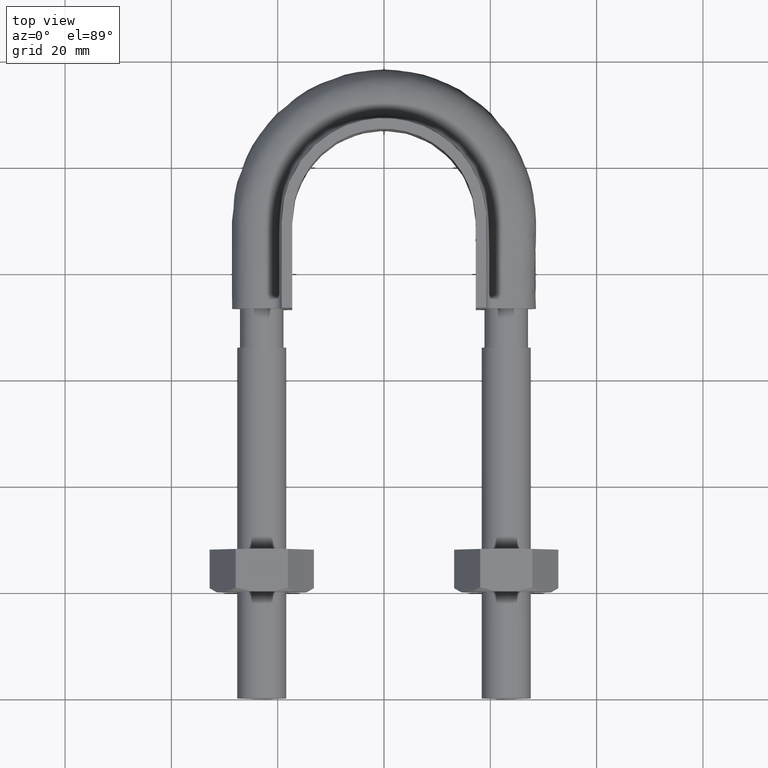
[diagram: clean part render]
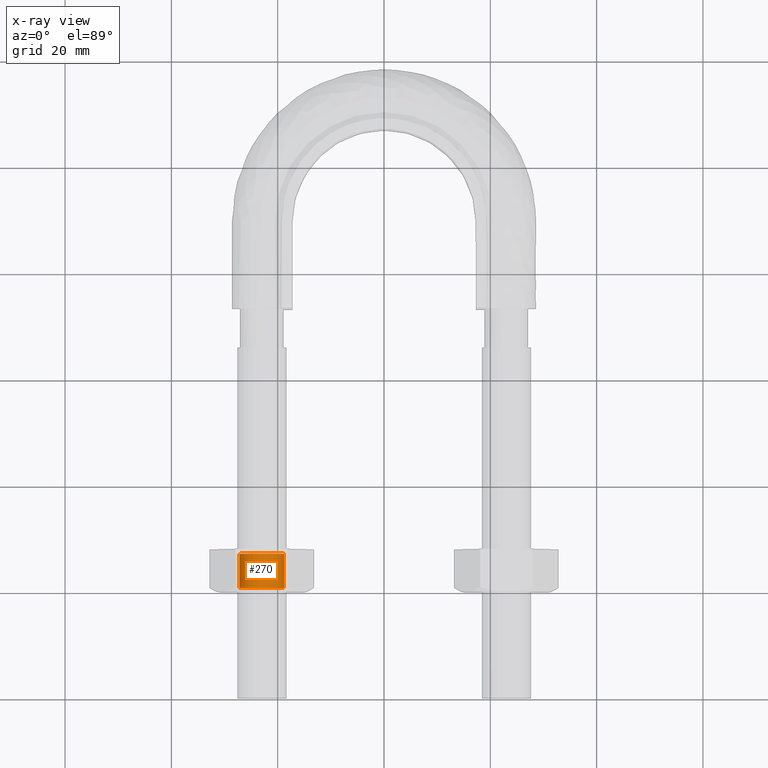
[diagram: x-ray — body ghosted, one internal face saturated and labeled with its STEP entity id]
A machine part, top view, then the same camera in x-ray: the body is ghosted and one INTERNAL B-rep face — a face not visible from any outside direction — is saturated and labeled: STEP entity #270.
In plain terms, the highlighted cylindrical surface (bore or boss wall) has radius 4.188 mm, axis along (-0, -1, -0).
Its self-contained STEP definition (entity closure, byte-faithful):
#270 = ADVANCED_FACE( '', ( #411, #412 ), #413, .F. );
#411 = FACE_OUTER_BOUND( '', #1408, .T. );
#412 = FACE_OUTER_BOUND( '', #1409, .T. );
#413 = CYLINDRICAL_SURFACE( '', #1410, 4.18800000000000 );
#1408 = EDGE_LOOP( '', ( #1820 ) );
#1409 = EDGE_LOOP( '', ( #1821 ) );
#1410 = AXIS2_PLACEMENT_3D( '', #1822, #1823, #1824 );
#1820 = ORIENTED_EDGE( '', *, *, #2102, .T. );
#1821 = ORIENTED_EDGE( '', *, *, #2101, .F. );
#1822 = CARTESIAN_POINT( '', ( -23.0000000000000, 28.0000000000000, 9.03086199571801E-015 ) );
#1823 = DIRECTION( '', ( -2.44921270764475E-016, -1.00000000000000, -3.06151588455594E-016 ) );
#1824 = DIRECTION( '', ( -0.866025403784439, 3.65183836637000E-016, -0.500000000000000 ) );
#2101 = EDGE_CURVE( '', #2315, #2315, #2316, .T. );
#2102 = EDGE_CURVE( '', #2317, #2317, #2318, .T. );
#2315 = VERTEX_POINT( '', #2841 );
#2316 = CIRCLE( '', #2842, 4.18800000000000 );
#2317 = VERTEX_POINT( '', #2843 );
#2318 = CIRCLE( '', #2844, 4.18800000000000 );
#2841 = CARTESIAN_POINT( '', ( -26.6269143910492, 20.8120000000000, -2.09399999999999 ) );
#2842 = AXIS2_PLACEMENT_3D( '', #3161, #3162, #3163 );
#2843 = CARTESIAN_POINT( '', ( -26.6269143910492, 27.1880000000000, -2.09399999999999 ) );
#2844 = AXIS2_PLACEMENT_3D( '', #3164, #3165, #3166 );
#3161 = CARTESIAN_POINT( '', ( -23.0000000000000, 20.8120000000000, 6.83024437789920E-015 ) );
#3162 = DIRECTION( '', ( 2.44921270764475E-016, 1.00000000000000, 3.06151588455594E-016 ) );
#3163 = DIRECTION( '', ( -0.866025403784439, 3.65183836637000E-016, -0.500000000000000 ) );
#3164 = CARTESIAN_POINT( '', ( -23.0000000000000, 27.1880000000000, 8.78226690589207E-015 ) );
#3165 = DIRECTION( '', ( 2.44921270764475E-016, 1.00000000000000, 3.06151588455594E-016 ) );
#3166 = DIRECTION( '', ( -0.866025403784439, 3.65183836637000E-016, -0.500000000000000 ) );